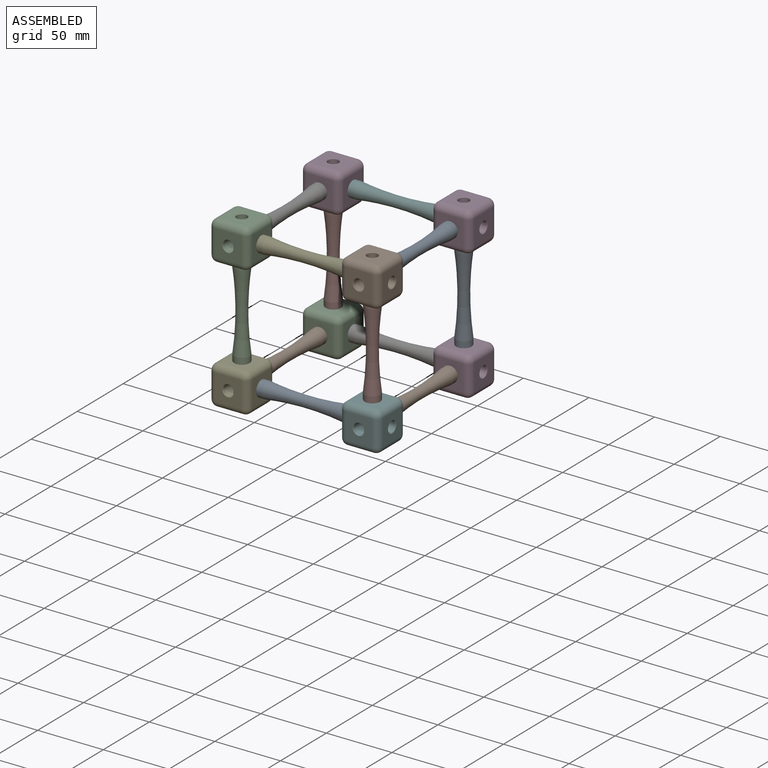
[diagram: assembled view]
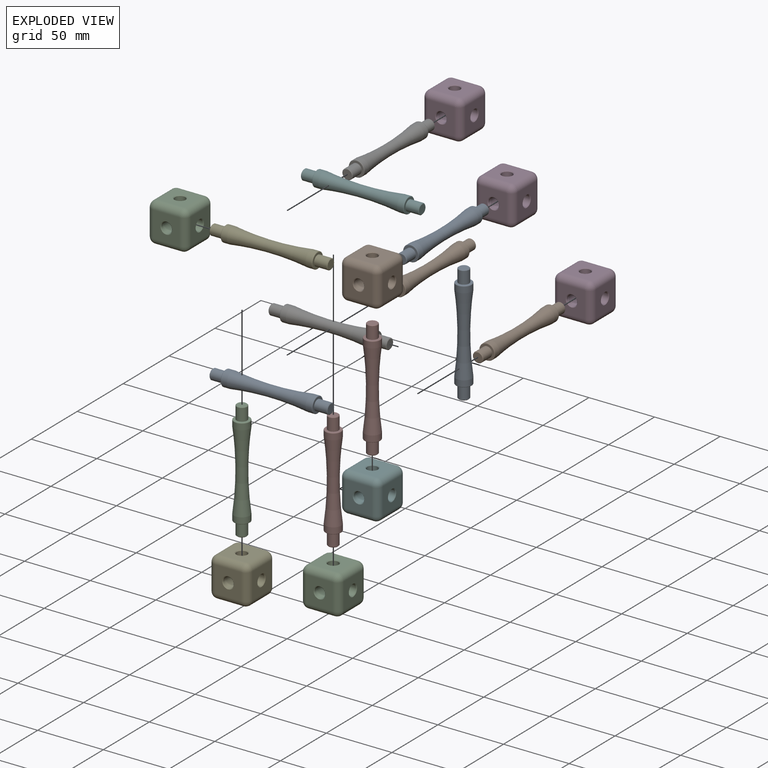
[diagram: exploded view]
GUIDED TOUR — MATED ASSEMBLY (Onshape document 3d562048293450f3e2a75040, AutoMate assembly 3d562048293450f3e2a75040_65184935743cf0b8a22c943e_c2afda80e834590393e167a7_default)

This assembly has 20 components, labeled P0..P19 below (a component is one placed occurrence of a part; the same part can appear more than once), held together by 24 mates. A mate is a constraint between two components; its type names the relative motion it leaves free:
  FASTENED — locks the two components together rigidly (no relative motion).
Axis/direction vectors are unit vectors and 'through' points are millimeter coordinates, both in the assembly's world frame.

MATES
  1. FASTENED "Fastened 12": P18 <-> P14, direction (0.000, 1.000, 0.000) through (-49.75, -84.75, 99.50) mm
  2. FASTENED "Fastened 6": P13 <-> P11, direction (1.000, 0.000, 0.000) through (35.00, 0.00, 99.50) mm
  3. FASTENED "Fastened 1": P3 <-> P6, direction (-1.000, 0.000, 0.000) through (35.00, 0.00, 0.00) mm
  4. FASTENED "Fastened 5": P12 <-> P10, direction (0.000, 0.000, 1.000) through (-49.75, -99.50, 14.75) mm
  5. FASTENED "Fastened 16": P9 <-> P2, direction (0.000, 1.000, 0.000) through (-49.75, -14.75, 0.00) mm
  6. FASTENED "Fastened 7": P13 <-> P19, direction (-1.000, 0.000, 0.000) through (-35.00, 0.00, 99.50) mm
  7. FASTENED "Fastened 8": P19 <-> P7, direction (0.000, 0.000, -1.000) through (-49.75, 0.00, 84.75) mm
  8. FASTENED "Fastened 6": P4 <-> P1, direction (1.000, 0.000, 0.000) through (35.00, -99.50, 99.50) mm
  9. FASTENED "Fastened 14": P5 <-> P17, direction (0.000, 1.000, 0.000) through (49.75, -84.75, 0.00) mm
  10. FASTENED "Fastened 3": P3 <-> P0, direction (0.000, 0.000, 1.000) through (49.75, 0.00, 14.75) mm
  11. FASTENED "Fastened 4": P1 <-> P15, direction (0.000, 0.000, -1.000) through (49.75, -99.50, 84.75) mm
  12. FASTENED "Fastened 11": P14 <-> P19, direction (0.000, 1.000, 0.000) through (-49.75, -14.75, 99.50) mm
  13. FASTENED "Fastened 15": P12 <-> P9, direction (0.000, 1.000, 0.000) through (-49.75, -84.75, 0.00) mm
  14. FASTENED "Fastened 3": P5 <-> P15, direction (0.000, 0.000, 1.000) through (49.75, -99.50, 14.75) mm
  15. FASTENED "Fastened 8": P18 <-> P10, direction (0.000, 0.000, -1.000) through (-49.75, -99.50, 84.75) mm
  16. FASTENED "Fastened 1": P5 <-> P8, direction (-1.000, 0.000, 0.000) through (35.00, -99.50, 0.00) mm
  17. FASTENED "Fastened 10": P1 <-> P16, direction (0.000, 1.000, 0.000) through (49.75, -84.75, 99.50) mm
  18. FASTENED "Fastened 13": P3 <-> P17, direction (0.000, -1.000, 0.000) through (49.75, -14.75, 0.00) mm
  19. FASTENED "Fastened 2": P12 <-> P8, direction (1.000, 0.000, 0.000) through (-35.00, -99.50, 0.00) mm
  20. FASTENED "Fastened 7": P4 <-> P18, direction (-1.000, 0.000, 0.000) through (-35.00, -99.50, 99.50) mm
  21. FASTENED "Fastened 2": P2 <-> P6, direction (1.000, 0.000, 0.000) through (-35.00, 0.00, 0.00) mm
  22. FASTENED "Fastened 4": P11 <-> P0, direction (0.000, 0.000, -1.000) through (49.75, 0.00, 84.75) mm
  23. FASTENED "Fastened 5": P2 <-> P7, direction (0.000, 0.000, 1.000) through (-49.75, 0.00, 14.75) mm
  24. FASTENED "Fastened 9": P16 <-> P11, direction (0.000, 1.000, 0.000) through (49.75, -14.75, 99.50) mm

ASSEMBLY ORDER
  1. P1 — the base component [order heuristic]
  2. P4 [order heuristic]
  3. P15 [order heuristic]
  4. P16 [order heuristic]
  5. P5 [order heuristic]
  6. P11 [order heuristic]
  7. P18 [order heuristic]
  8. P0 [order heuristic]
  9. P8 [order heuristic]
  10. P10 [order heuristic]
  11. P13 [order heuristic]
  12. P14 [order heuristic]
  13. P17 [order heuristic]
  14. P3 [order heuristic]
  15. P12 [order heuristic]
  16. P19 [order heuristic]
  17. P6 [order heuristic]
  18. P7 [order heuristic]
  19. P9 [order heuristic]
  20. P2 [order heuristic]
Order-tag legend:
  [order heuristic] — this assembly is geometrically interlocked (no collision-free removal order exists), so components are listed in mate-graph order; insertion feasibility is not verified.

Of the 20 components, 12 carry the full construction recipe — the FeatureScript program that regenerates the part's solid from scratch; the rest are supplied as boundary geometry only.
Because this assembly has more than 12 components, the tour below covers the 12 most significant ones individually (every recipe-attached component first, then the largest by part volume), in assembly order; the remaining 8 are summarized together in a grouped section at the end.
Each toured component is shown spotlighted twice — in the assembled view, then in the exploded view, where a leader line traces a displaced component back to its assembled socket (saturated green if recipe-attached, orange if geometry-only; every other component desaturated gray) — followed by its recipe or geometry summary and the mates that hold it.
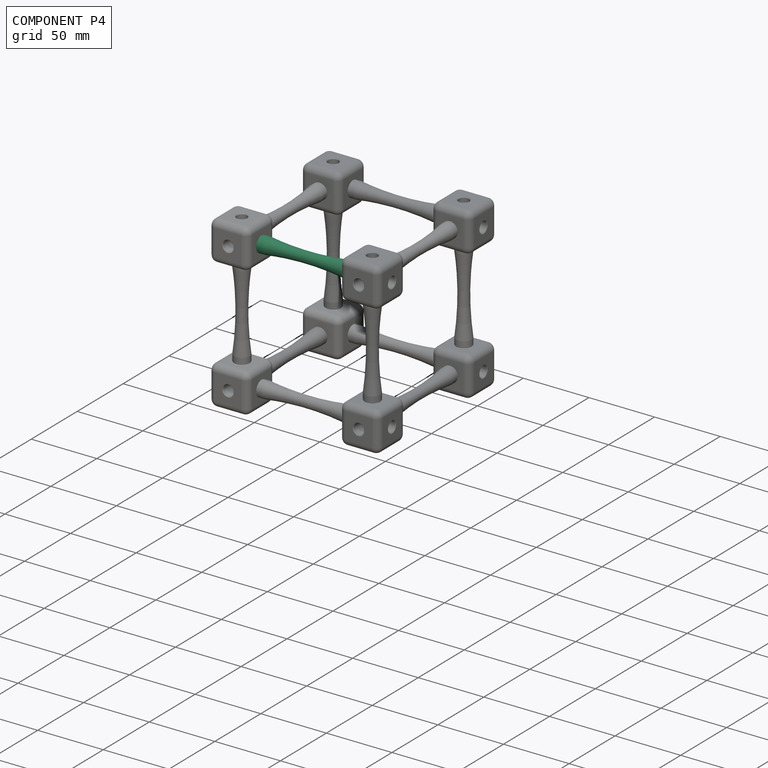
[diagram: component P4 — assembled]
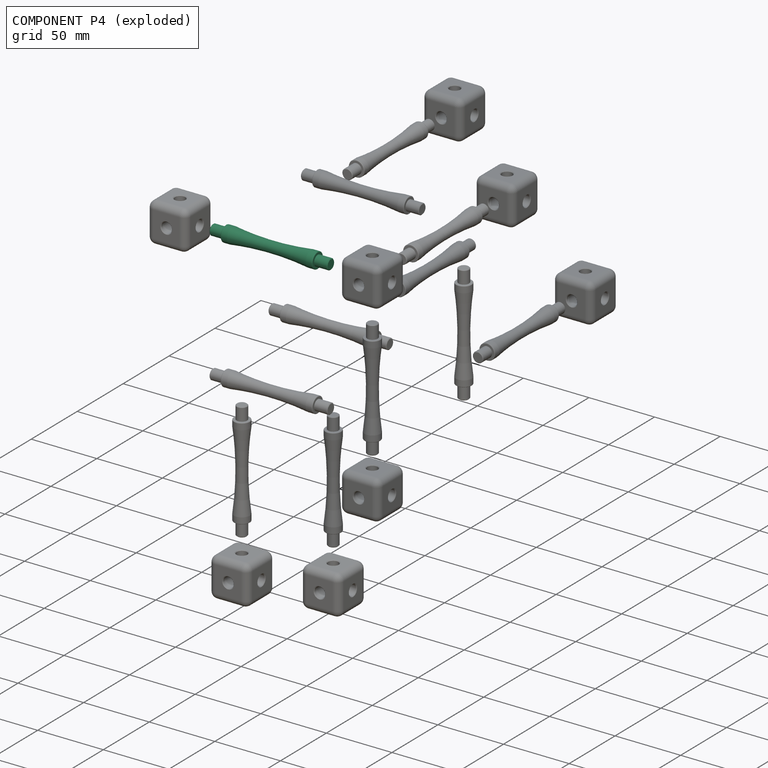
[diagram: component P4 — exploded]
COMPONENT P4 — same part as P0 (CADFS 00830867); its construction recipe is shown at P0.
Held by: FASTENED mate "Fastened 6" to P1; FASTENED mate "Fastened 7" to P18.
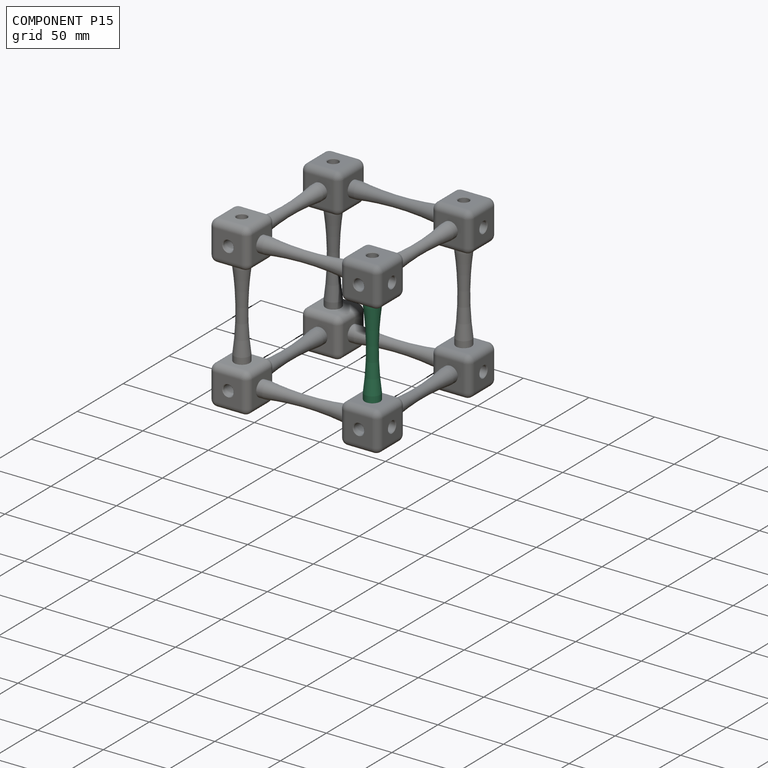
[diagram: component P15 — assembled]
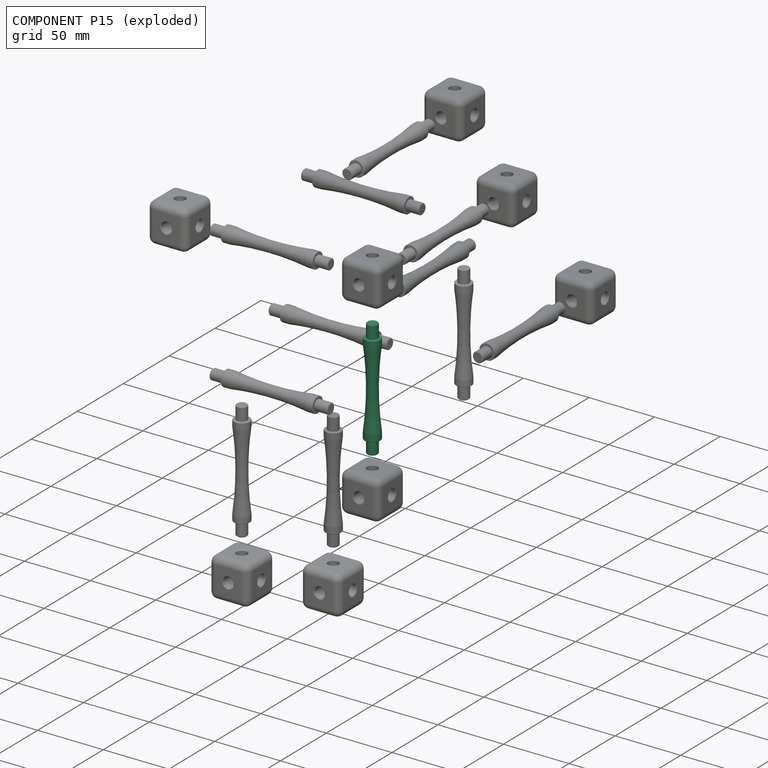
[diagram: component P15 — exploded]
COMPONENT P15 — same part as P0 (CADFS 00830867); its construction recipe is shown at P0.
Held by: FASTENED mate "Fastened 4" to P1; FASTENED mate "Fastened 3" to P5.
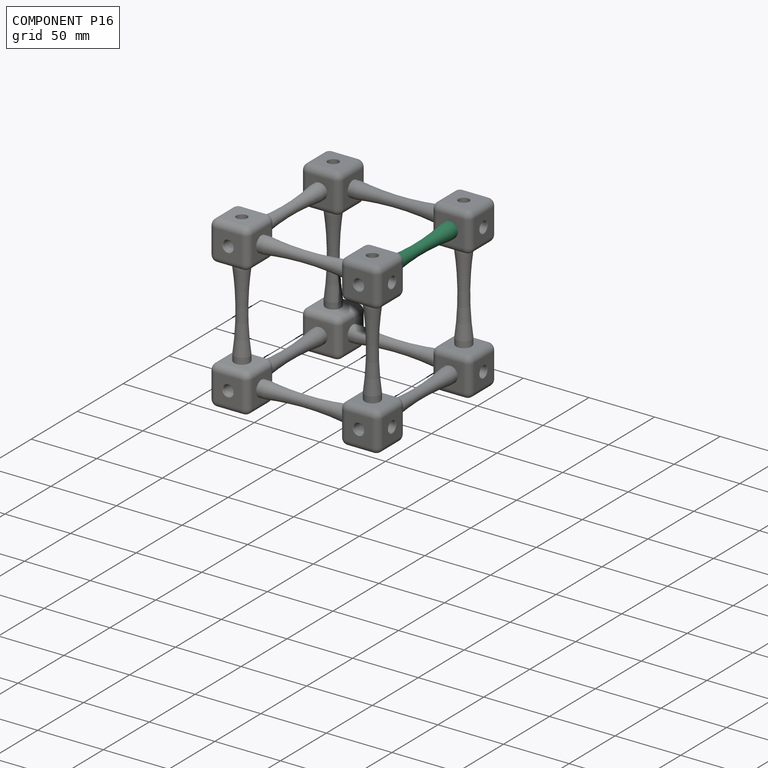
[diagram: component P16 — assembled]
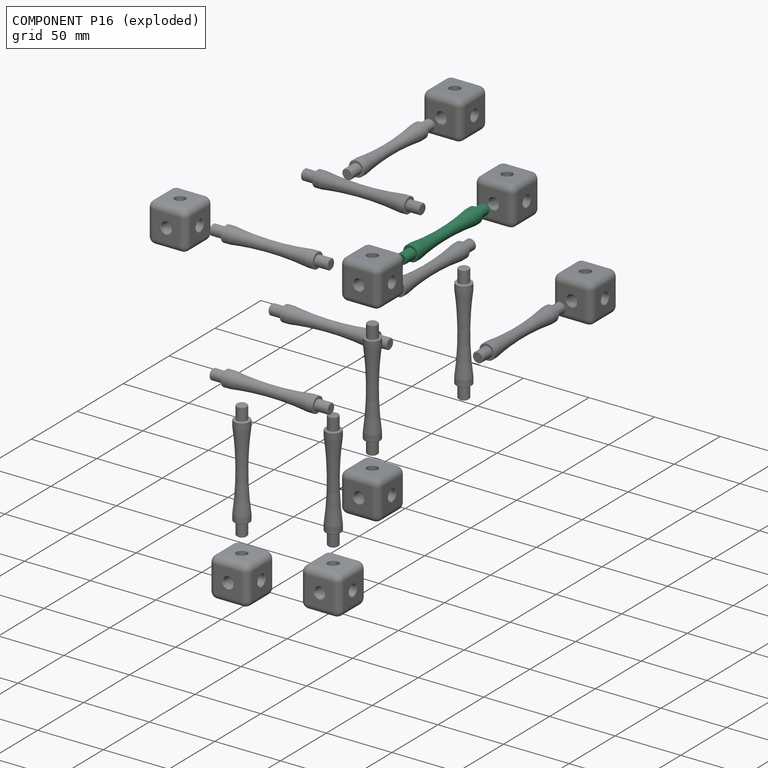
[diagram: component P16 — exploded]
COMPONENT P16 — same part as P0 (CADFS 00830867); its construction recipe is shown at P0.
Held by: FASTENED mate "Fastened 10" to P1; FASTENED mate "Fastened 9" to P11.
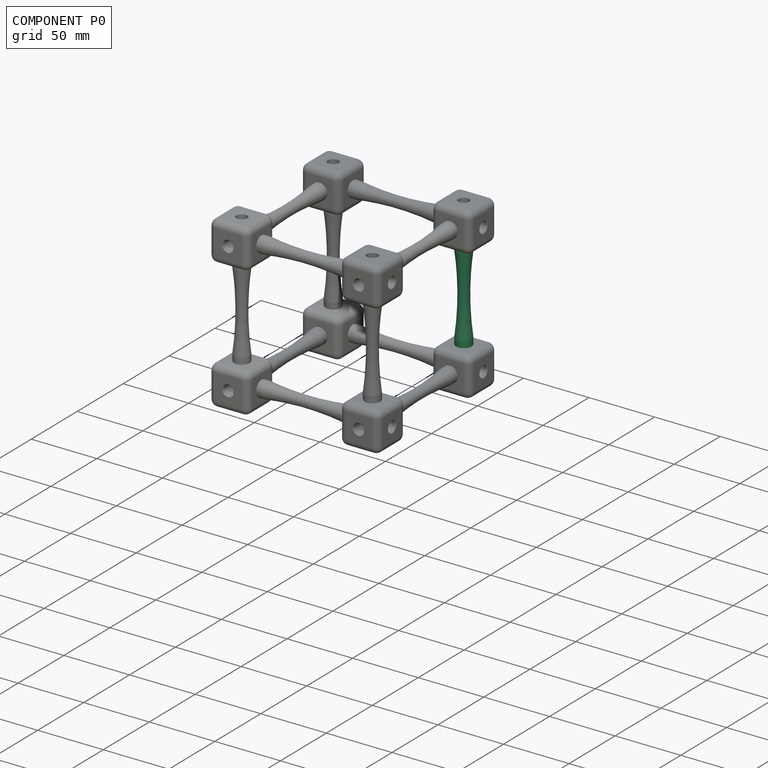
[diagram: component P0 — assembled]
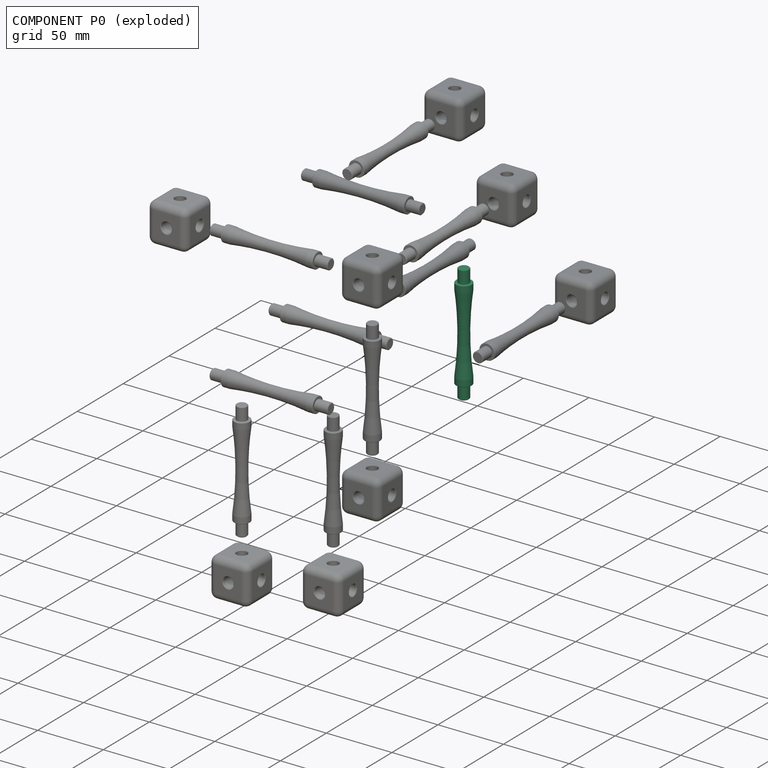
[diagram: component P0 — exploded]
COMPONENT P0 — recipe-attached (CADFS 00830867, mesh-verified: the recipe's output STEP matches this component's geometry to below the mesh-comparison resolution (tessellation chordal tolerance ~0.137 mm)).
Held by: FASTENED mate "Fastened 3" to P3; FASTENED mate "Fastened 4" to P11.
Construction recipe (FeatureScript — the CAD program that rebuilds this solid; sketch coordinates are in the units given by the * unit suffixes, e.g. mm):

FeatureScript 1540;
import(path : "onshape/std/geometry.fs", version : "1540.0");
import(path : "onshape/std/common.fs", version : "1540.0");
const mm = millimeter;
const VERTEX = EntityType.VERTEX;
const EDGE = EntityType.EDGE;
const FACE = EntityType.FACE;
const BODY = EntityType.BODY;
function v(x, y){return vector(x, y);}
function OD(order){return orderDisambiguation(order);}
function OSD(set){return originalSetDisambiguation(set);}
function TD(topology){return topologyDisambiguation(topology);}
function TDD(query){return trueDependencyDisambiguation(query);}
function sQuery(a, b, c) {return sketchEntityQuery(a, b, c);}

annotation { "Feature Type Name" : "Feature", "Feature Type Description" : "" }
export const myFeature = defineFeature(function(context is Context, id is Id, definition is map)
    precondition{}
    {
        {
            var Q0;
            Q0=qCreatedBy(makeId("Right.planeOp"),FACE);
            var sketch = newSketch(context, id + "F0", { "sketchPlane" : qUnion([Q0])});
            skCircle(sketch, "E0", {"center": v(0, 0) * mm, "radius": 4 * mm});
            skSolve(sketch);
        }
        {
            var Q0;
            Q0 = qSketchRegion(id + "F0", true);
            extrude(context, id + "F1", {"entities" : qUnion([Q0]), "depth" : 90 * mm, "offsetDistance" : 25 * mm, "symmetric" : true});
        }
        {
            var Q0;
            Q0=qCreatedBy(makeId("Right.planeOp"),FACE);
            var sketch = newSketch(context, id + "F2", { "sketchPlane" : qUnion([Q0])});
            skCircle(sketch, "E1", {"center": v(0, 0) * mm, "radius": 6 * mm});
            skSolve(sketch);
        }
        {
            var Q0;
            Q0=makeQuery(id+"F2.imprint","IMPRINT",FACE,{"disambiguationData":[TD([[makeQuery(id+"F2.imprint","IMPRINT",EDGE,{"derivedFrom":sQuery(id+"F2.wireOp",EDGE,"E1")}),1.0]])]});
            extrude(context, id + "F3", {"entities" : qUnion([Q0]), "operationType" : NewBodyOperationType.ADD, "depth" : 70 * mm, "offsetDistance" : 25 * mm, "symmetric" : true});
        }
        {
            var Q0;
            Q0=qCreatedBy(makeId("Front.planeOp"),FACE);
            var sketch = newSketch(context, id + "F4", { "sketchPlane" : qUnion([Q0])});
            skLineSegment(sketch, "E2.bottom", {"start": v(-35, 6) * mm, "end": v(35, 6) * mm, "construction": true});
            skLineSegment(sketch, "E2.top", {"start": v(-35, -6) * mm, "end": v(35, -6) * mm, "construction": true});
            skLineSegment(sketch, "E2.left", {"start": v(-35, 6) * mm, "end": v(-35, -6) * mm, "construction": true});
            skLineSegment(sketch, "E2.right", {"start": v(35, 6) * mm, "end": v(35, -6) * mm, "construction": true});
            skPoint(sketch, "E2.middle", {"position": v(0, 0) * mm});
            skArc(sketch, "E3", {"start": v(-30, 6) * mm, "mid": v(0, 4) * mm, "end": v(30, 6) * mm});
            skLineSegment(sketch, "E4", {"start": v(-30, 6) * mm, "end": v(30, 6) * mm});
            skSolve(sketch);
        }
        {
            var Q0;
            Q0=qCreatedBy(makeId("Front.planeOp"),FACE);
            var sketch = newSketch(context, id + "F5", { "sketchPlane" : qUnion([Q0])});
            skLineSegment(sketch, "E5", {"start": v(0, 0) * mm, "end": v(25.17, 0) * mm});
            skSolve(sketch);
        }
        {
            var Q0;
            Q0 = qSketchRegion(id + "F4", true);
            var Q1;
            Q1=sQuery(id+"F5.wireOp",EDGE,"E5");
            revolve(context, id + "F6", {"operationType" : NewBodyOperationType.REMOVE, "surfaceOperationType" : NewSurfaceOperationType.NEW, "entities" : qUnion([Q0]), "axis" : qUnion([Q1]), "revolveType" : RevolveType.FULL, "oppositeDirection" : true});
        }
        {
            var Q0;
            Q0=makeQuery(id+"F3.opExtrude","CAP_EDGE",EDGE,{"disambiguationData":[OSD([sQuery(id+"F2.wireOp",EDGE,"E1")])],"isStart":true});
            var Q1;
            Q1=makeQuery(id+"F3.opExtrude","CAP_EDGE",EDGE,{"disambiguationData":[OSD([sQuery(id+"F2.wireOp",EDGE,"E1")])],"isStart":false});
            fillet(context, id + "F7", {"entities" : qUnion([Q0, Q1]), "radius" : 0.5 * mm, "tangentPropagation" : true, "allowEdgeOverflow" : false});
        }
        {
            var Q0;
            Q0=makeQuery(id+"F1.opExtrude","CAP_EDGE",EDGE,{"disambiguationData":[OSD([sQuery(id+"F0.wireOp",EDGE,"E0")])],"isStart":true});
            var Q1;
            Q1=makeQuery(id+"F1.opExtrude","CAP_EDGE",EDGE,{"disambiguationData":[OSD([sQuery(id+"F0.wireOp",EDGE,"E0")])],"isStart":false});
            chamfer(context, id + "F8", {"entities" : qUnion([Q0, Q1]), "width" : 0.5 * mm, "tangentPropagation" : true});
        }
    });
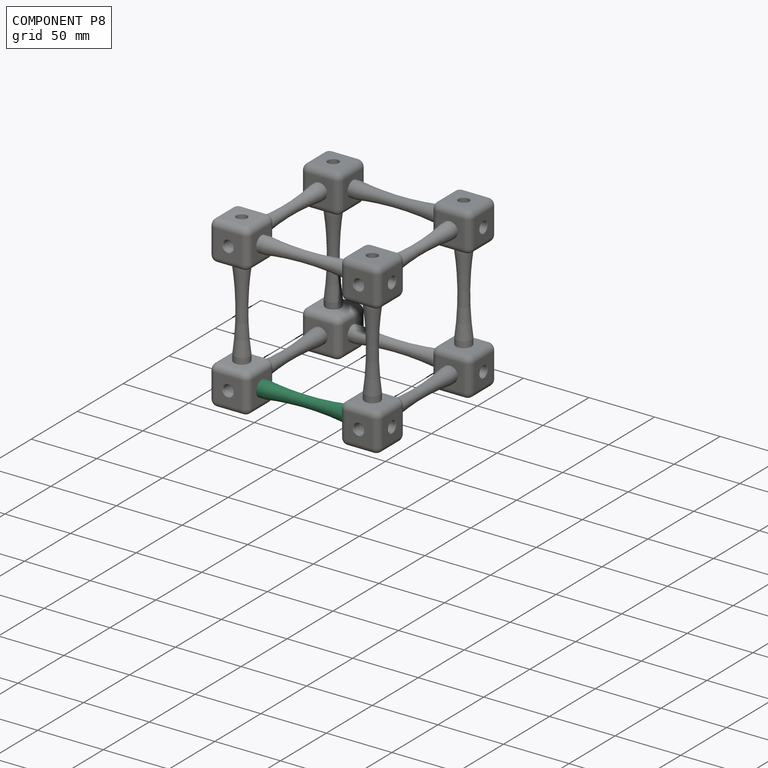
[diagram: component P8 — assembled]
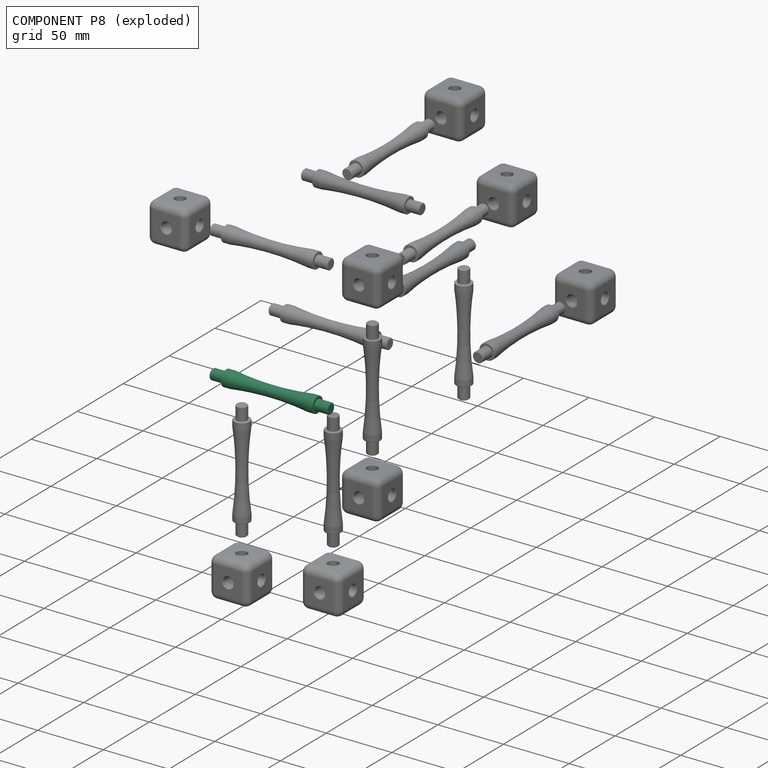
[diagram: component P8 — exploded]
COMPONENT P8 — same part as P0 (CADFS 00830867); its construction recipe is shown at P0.
Held by: FASTENED mate "Fastened 1" to P5; FASTENED mate "Fastened 2" to P12.
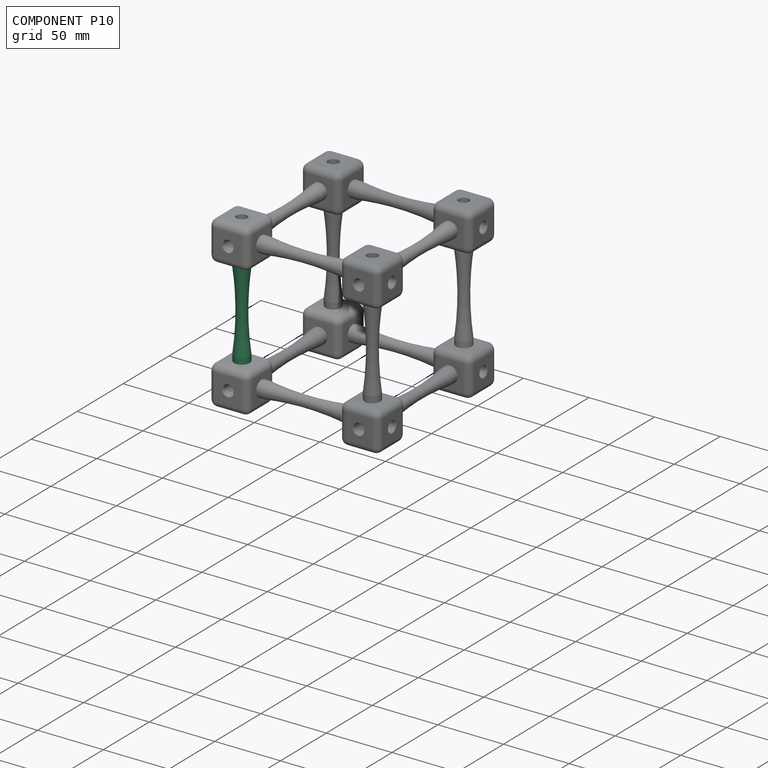
[diagram: component P10 — assembled]
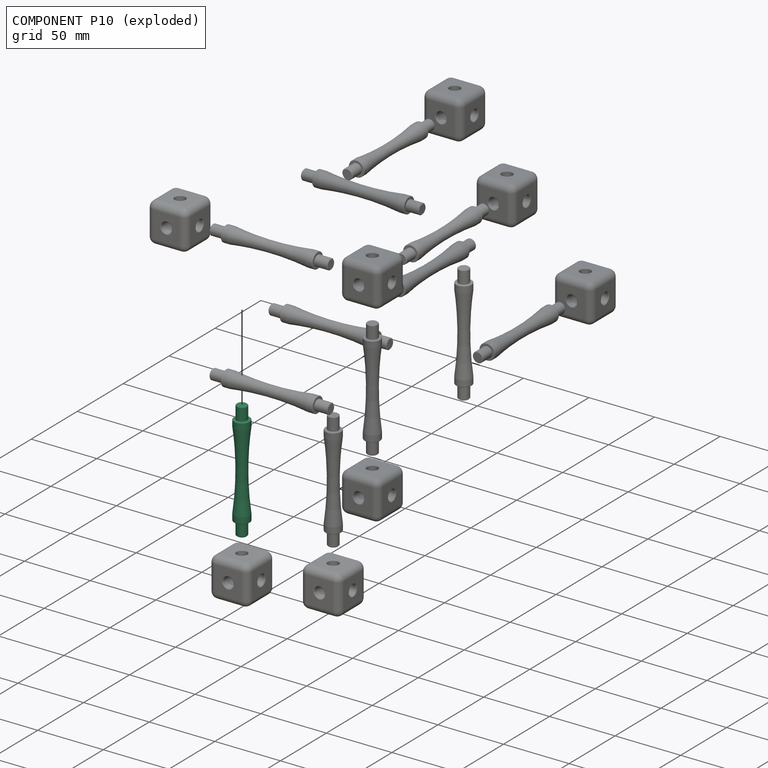
[diagram: component P10 — exploded]
COMPONENT P10 — same part as P0 (CADFS 00830867); its construction recipe is shown at P0.
Held by: FASTENED mate "Fastened 5" to P12; FASTENED mate "Fastened 8" to P18.
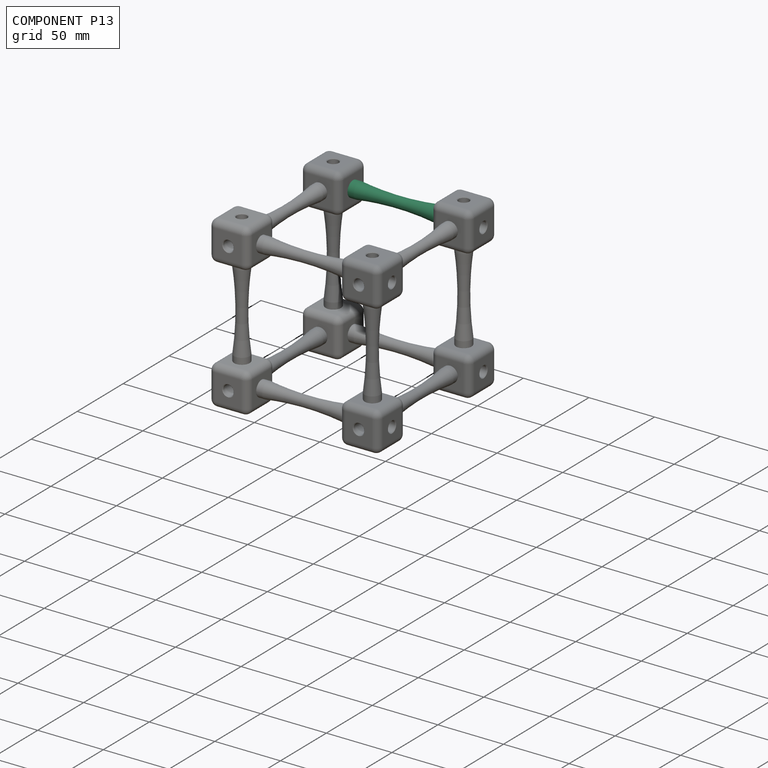
[diagram: component P13 — assembled]
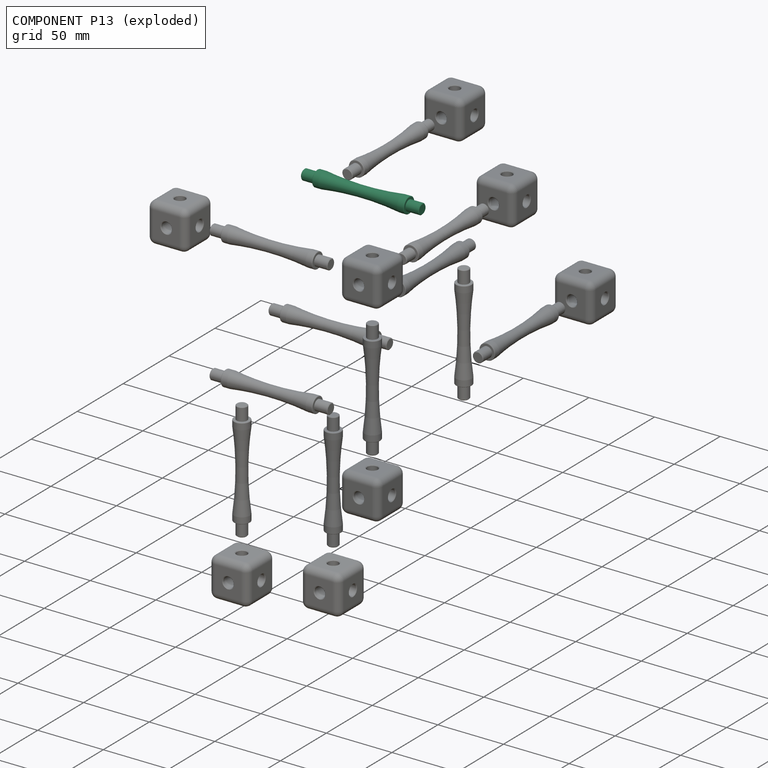
[diagram: component P13 — exploded]
COMPONENT P13 — same part as P0 (CADFS 00830867); its construction recipe is shown at P0.
Held by: FASTENED mate "Fastened 6" to P11; FASTENED mate "Fastened 7" to P19.
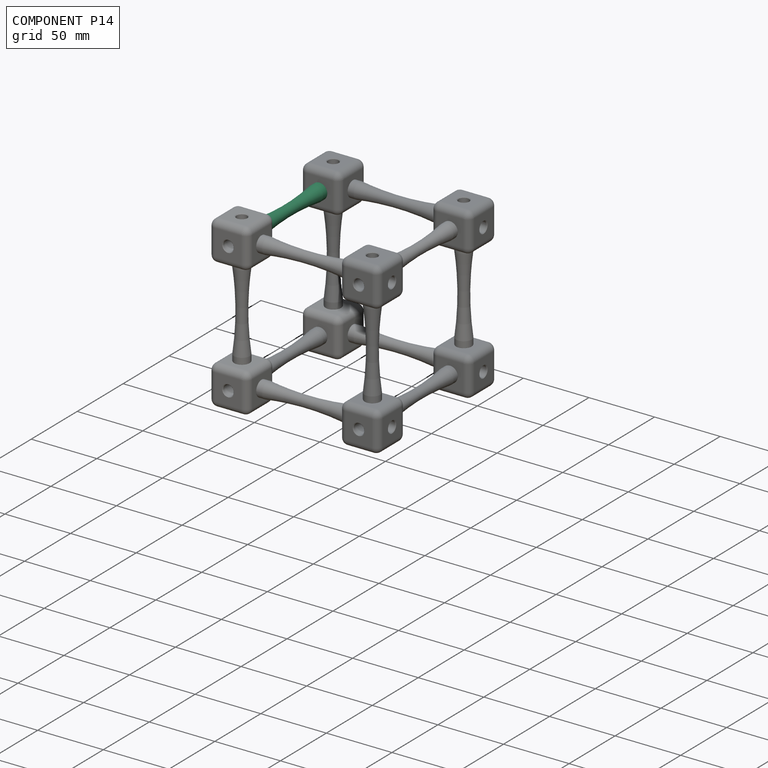
[diagram: component P14 — assembled]
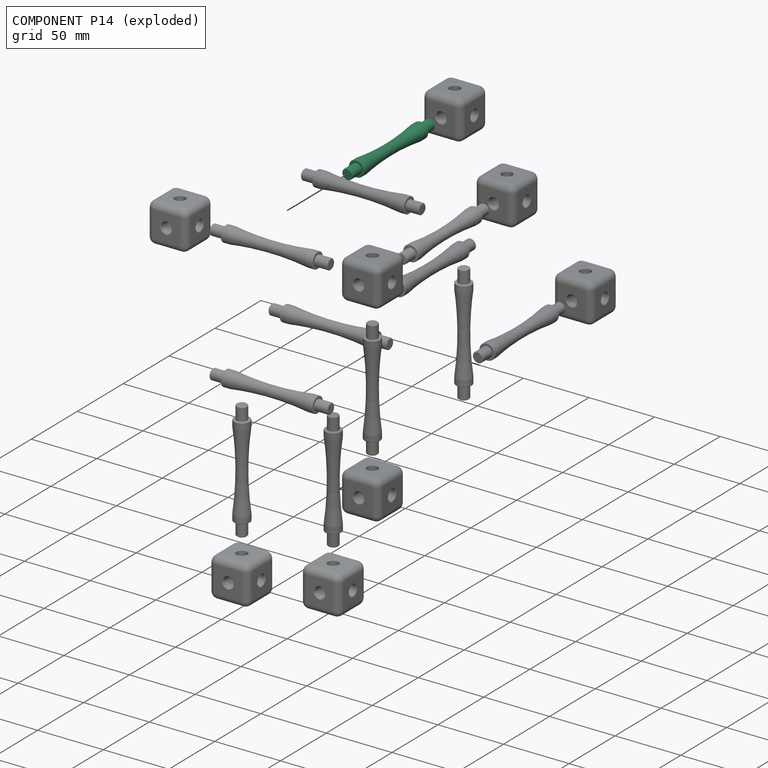
[diagram: component P14 — exploded]
COMPONENT P14 — same part as P0 (CADFS 00830867); its construction recipe is shown at P0.
Held by: FASTENED mate "Fastened 12" to P18; FASTENED mate "Fastened 11" to P19.
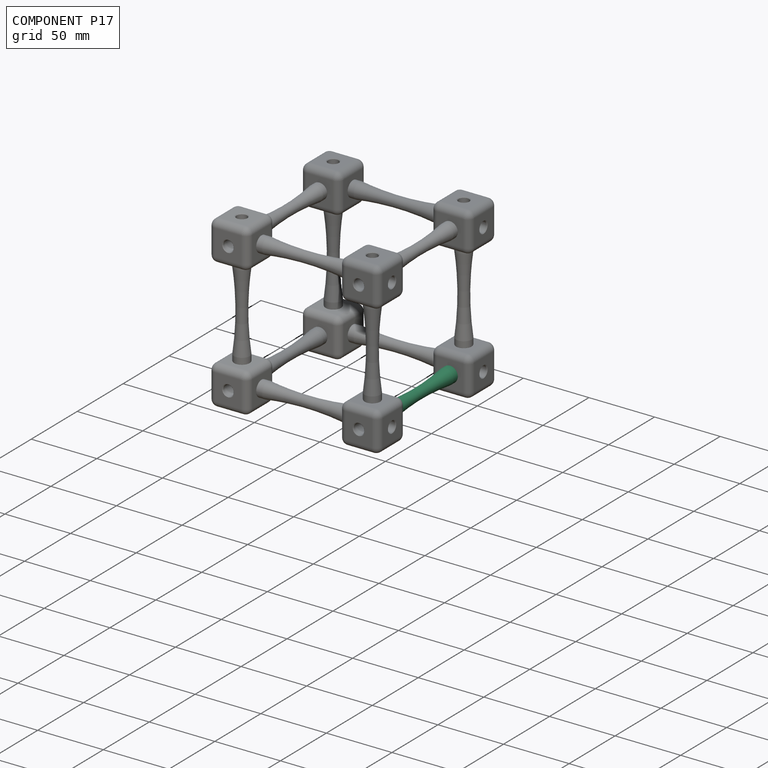
[diagram: component P17 — assembled]
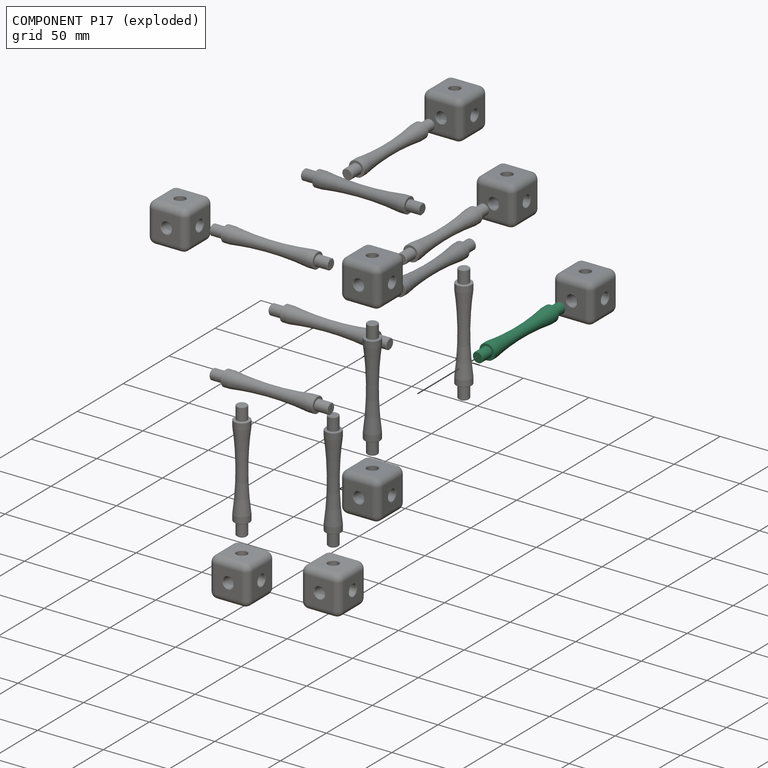
[diagram: component P17 — exploded]
COMPONENT P17 — same part as P0 (CADFS 00830867); its construction recipe is shown at P0.
Held by: FASTENED mate "Fastened 14" to P5; FASTENED mate "Fastened 13" to P3.
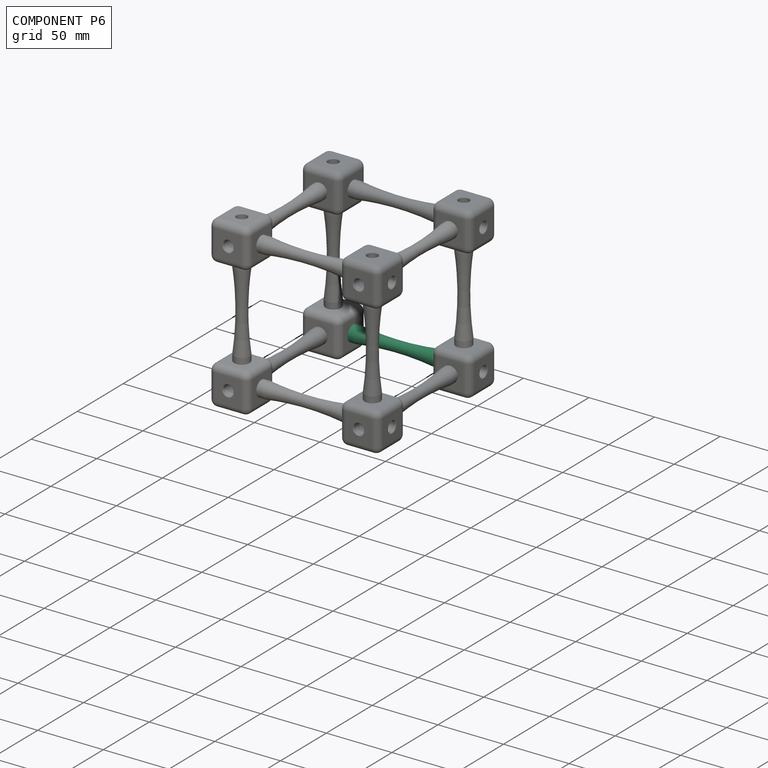
[diagram: component P6 — assembled]
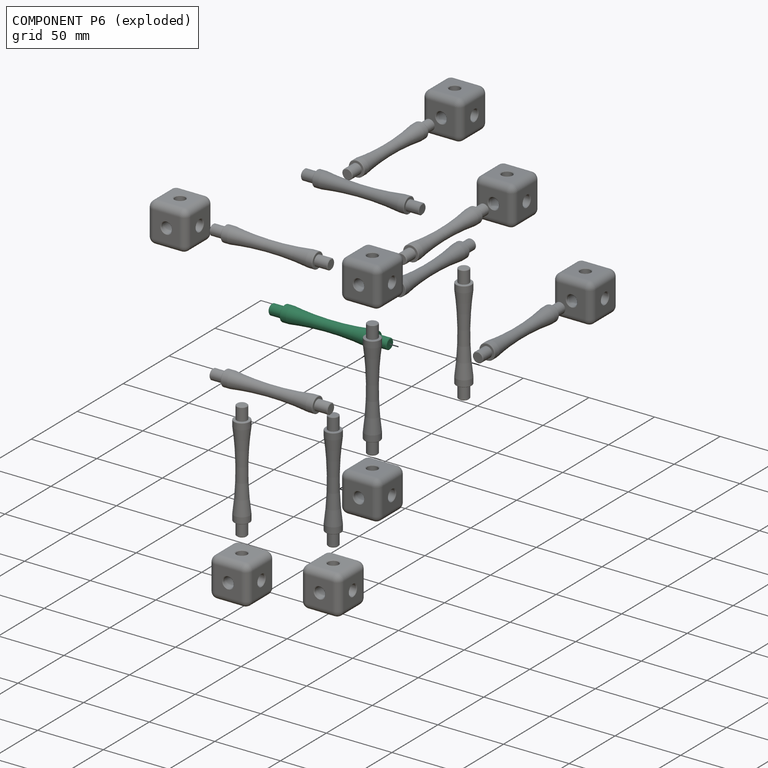
[diagram: component P6 — exploded]
COMPONENT P6 — same part as P0 (CADFS 00830867); its construction recipe is shown at P0.
Held by: FASTENED mate "Fastened 1" to P3; FASTENED mate "Fastened 2" to P2.
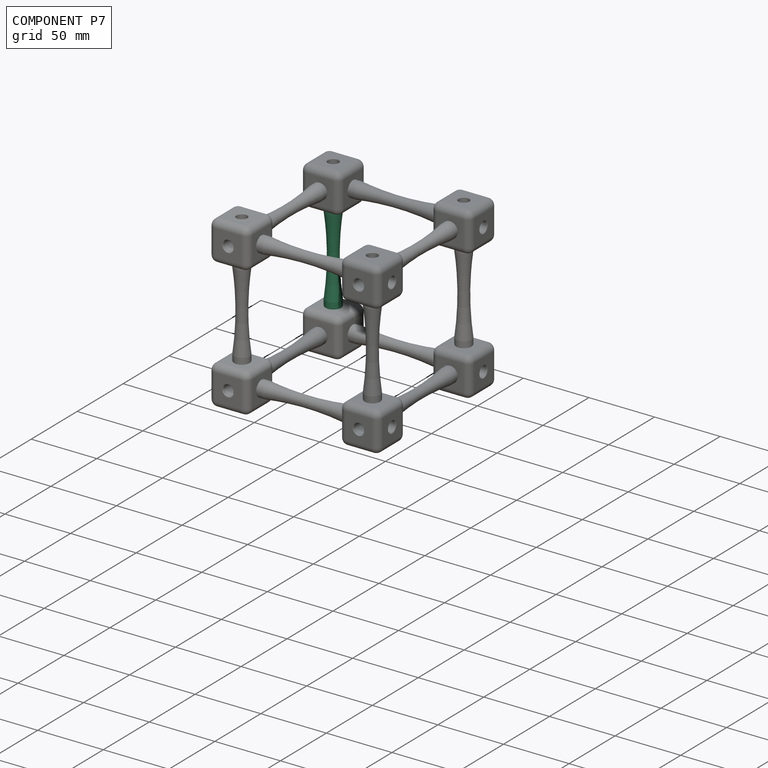
[diagram: component P7 — assembled]
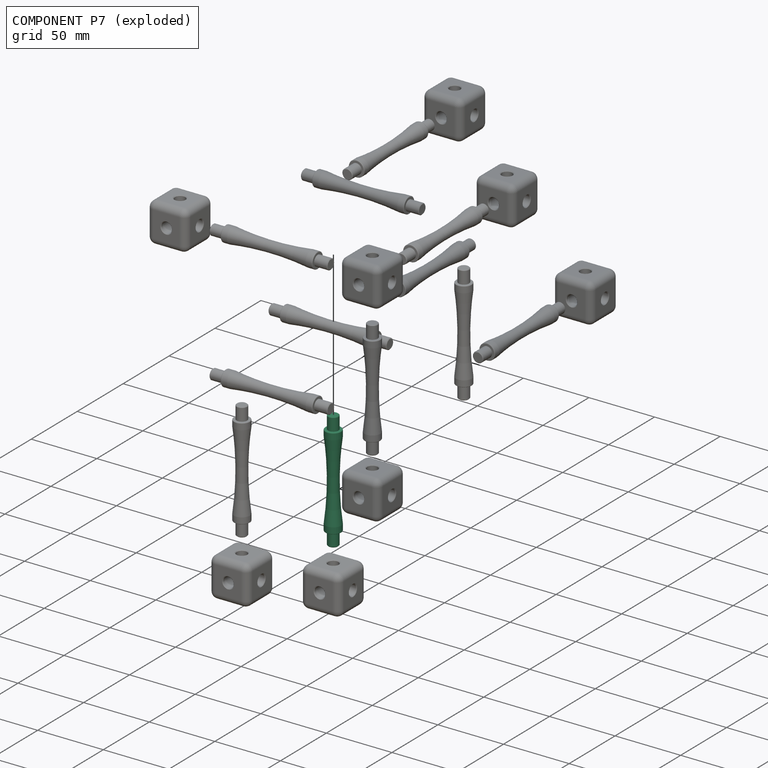
[diagram: component P7 — exploded]
COMPONENT P7 — same part as P0 (CADFS 00830867); its construction recipe is shown at P0.
Held by: FASTENED mate "Fastened 8" to P19; FASTENED mate "Fastened 5" to P2.
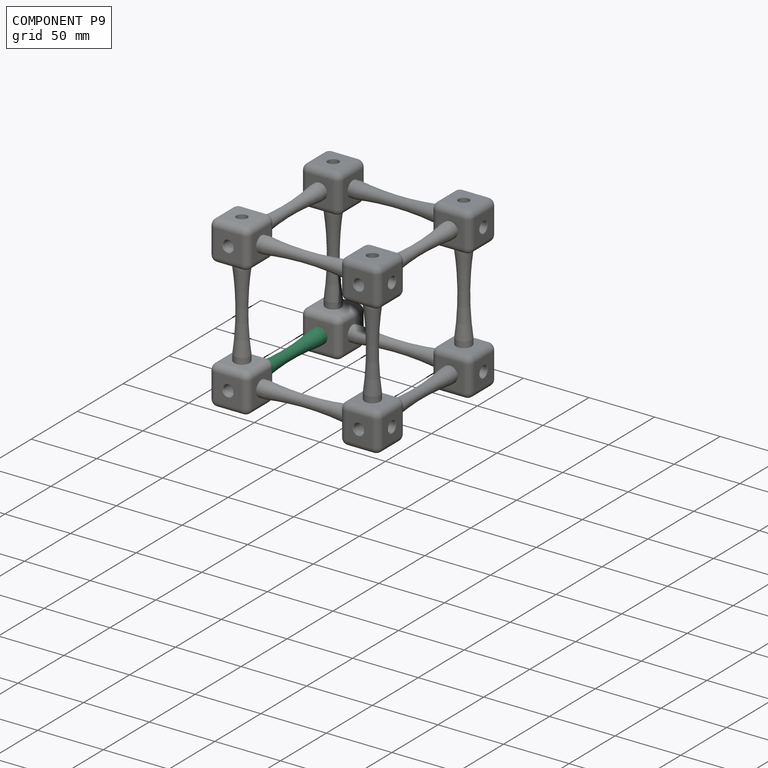
[diagram: component P9 — assembled]
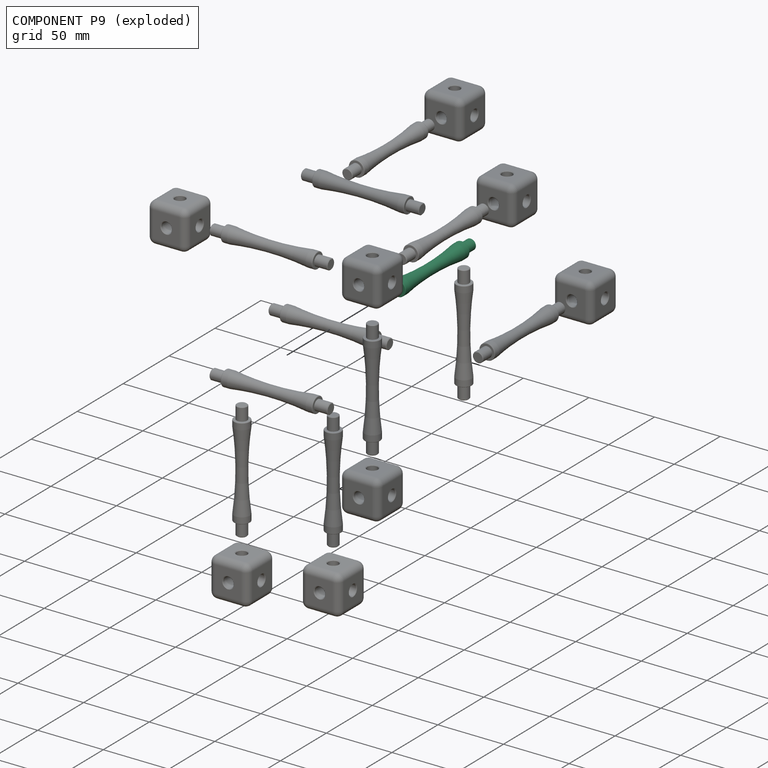
[diagram: component P9 — exploded]
COMPONENT P9 — same part as P0 (CADFS 00830867); its construction recipe is shown at P0.
Held by: FASTENED mate "Fastened 16" to P2; FASTENED mate "Fastened 15" to P12.
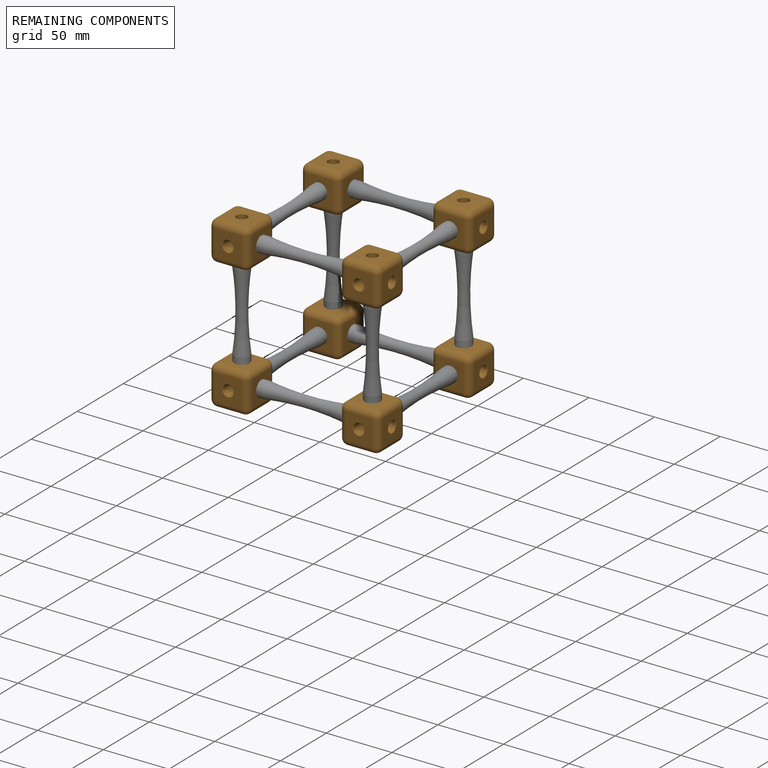
[diagram: remaining components — assembled]
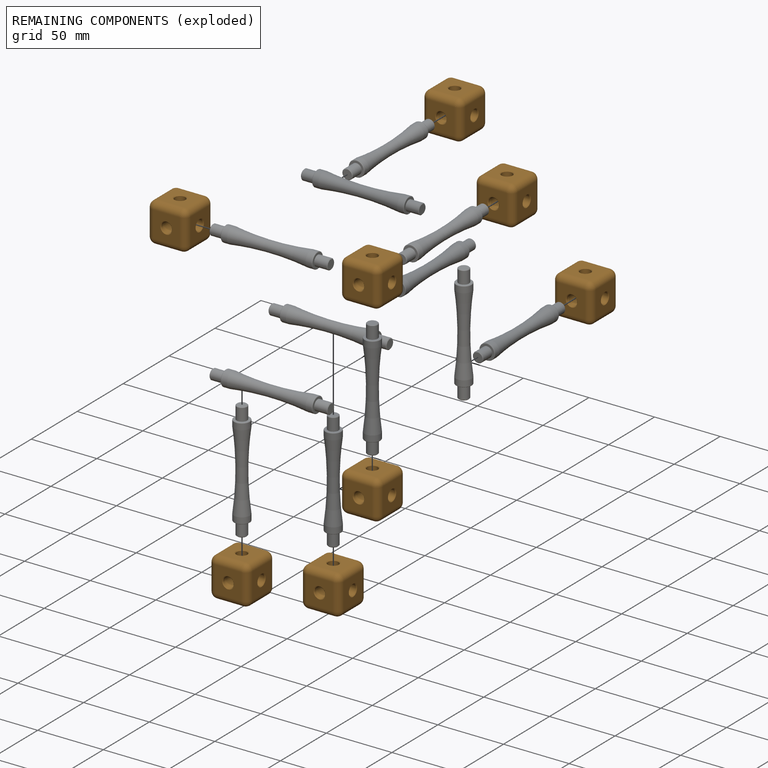
[diagram: remaining components — exploded]
REMAINING COMPONENTS (grouped) — the 8 components below fall outside the per-component tour by the significance rule stated above; both spotlight views highlight the whole group.
  P1: bounding box 30.0 x 30.0 x 30.0 mm, volume 21417 mm^3. Held by: FASTENED mate "Fastened 6" to P4; FASTENED mate "Fastened 4" to P15; FASTENED mate "Fastened 10" to P16.
  P5: bounding box 30.0 x 30.0 x 30.0 mm, volume 21417 mm^3. Held by: FASTENED mate "Fastened 14" to P17; FASTENED mate "Fastened 3" to P15; FASTENED mate "Fastened 1" to P8.
  P11: bounding box 30.0 x 30.0 x 30.0 mm, volume 21417 mm^3. Held by: FASTENED mate "Fastened 6" to P13; FASTENED mate "Fastened 4" to P0; FASTENED mate "Fastened 9" to P16.
  P18: bounding box 30.0 x 30.0 x 30.0 mm, volume 21417 mm^3. Held by: FASTENED mate "Fastened 12" to P14; FASTENED mate "Fastened 8" to P10; FASTENED mate "Fastened 7" to P4.
  P3: bounding box 30.0 x 30.0 x 30.0 mm, volume 21417 mm^3. Held by: FASTENED mate "Fastened 1" to P6; FASTENED mate "Fastened 3" to P0; FASTENED mate "Fastened 13" to P17.
  P12: bounding box 30.0 x 30.0 x 30.0 mm, volume 21417 mm^3. Held by: FASTENED mate "Fastened 5" to P10; FASTENED mate "Fastened 15" to P9; FASTENED mate "Fastened 2" to P8.
  P19: bounding box 30.0 x 30.0 x 30.0 mm, volume 21417 mm^3. Held by: FASTENED mate "Fastened 7" to P13; FASTENED mate "Fastened 8" to P7; FASTENED mate "Fastened 11" to P14.
  P2: bounding box 30.0 x 30.0 x 30.0 mm, volume 21417 mm^3. Held by: FASTENED mate "Fastened 16" to P9; FASTENED mate "Fastened 2" to P6; FASTENED mate "Fastened 5" to P7.
PROVENANCE & LICENSES
Assembly (occurrences, transforms, mates, per-part STEP geometry): AutoMate dataset, Zenodo record 7776208, CC0.
Construction recipes: CADFS (HuggingFace VladPyatov/CADFS, CC-BY-4.0, layered over the ABC dataset), FeatureScript reconstruction programs keyed by ABC model id.
Join: ABC meta listings map ABC model id -> Onshape documentId; within a shared document, parts are matched by geometric signature (bounding-box dims + volume at 0.1% relative tolerance, exact B-rep face/solid counts).
Verification: 12 of this assembly's 20 components carry a recipe attachment, and every attachment is mesh-verified: the CADFS STEP and the AutoMate member STEP were compared as meshes in their shared local frame (symmetric sampled-point-to-mesh distance); worst across the 12 attachments: below the mesh-comparison resolution (tessellation chordal tolerance ~0.137 mm) on a 92 mm part.
Renders: orthographic iso camera (az 35 / el 25); the floor grid conveys scale (grid pitch printed in each image; no ruler). In the exploded view each component is displaced by its stored offset vector: the offsets alone carry the explosion direction (mate normal/axis signs are not orientation cues and do not encode it), and separation distances are assigned per mate-chain, not proportionally to assembly-order depth.
